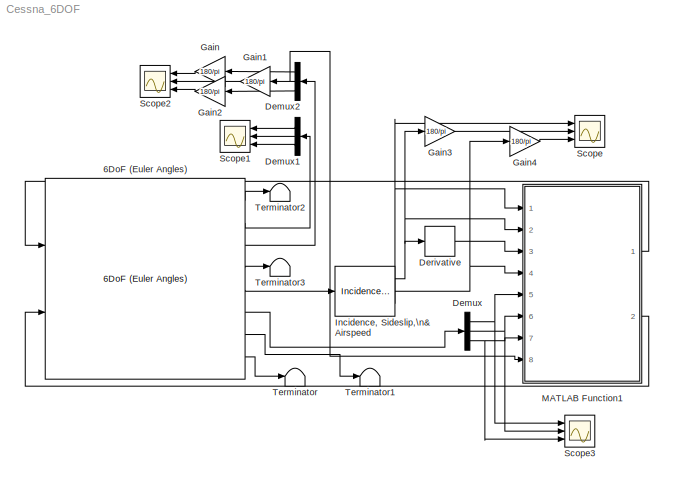
MODEL Cessna_6DOF
KIND model
BLOCK [Reference] 6DoF (Euler Angles)  REF=aerolibobsolete/6DoF (Euler Angles)
  Ports = [2, 8]
  SID = 1
  SourceBlock = aerolibobsolete/6DoF (Euler Angles)
  SourceType = 6DoF EoM (Body Axis)
  Vm_0 = [u v w]
  eul_0 = [phi theta psi]
  inertia = diag([I_xx I_yy I_zz])
  inertia_e = eye(3)
  inertia_f = 2*eye(3)
  k_quat = 1.0
  mass_0 = m
  mass_e = 0.5
  mass_f = 2.0
  mtype = Fixed
  pm_0 = [p q r]
  rep = Euler Angles
  units = Metric (MKS)
  xme_0 = [x y z]
BLOCK [Demux] Demux
  DisplayOption = bar
  Outputs = 3
  Ports = [1, 3]
  SID = 7
BLOCK [Demux] Demux1
  DisplayOption = bar
  Outputs = 3
  Ports = [1, 3]
  SID = 12
BLOCK [Demux] Demux2
  DisplayOption = bar
  Outputs = 3
  Ports = [1, 3]
  SID = 15
BLOCK [Derivative] Derivative
  SID = 6
BLOCK [Gain] Gain
  Gain = 180/pi
  OutDataTypeStr = Inherit: Inherit via internal rule
  ParamDataTypeStr = Inherit: Inherit via internal rule
  SID = 17
  SaturateOnIntegerOverflow = off
BLOCK [Gain] Gain1
  Gain = 180/pi
  OutDataTypeStr = Inherit: Inherit via internal rule
  ParamDataTypeStr = Inherit: Inherit via internal rule
  SID = 18
  SaturateOnIntegerOverflow = off
BLOCK [Gain] Gain2
  Gain = 180/pi
  OutDataTypeStr = Inherit: Inherit via internal rule
  ParamDataTypeStr = Inherit: Inherit via internal rule
  SID = 19
  SaturateOnIntegerOverflow = off
BLOCK [Gain] Gain3
  Gain = 180/pi
  OutDataTypeStr = Inherit: Inherit via internal rule
  ParamDataTypeStr = Inherit: Inherit via internal rule
  SID = 20
  SaturateOnIntegerOverflow = off
BLOCK [Gain] Gain4
  Gain = 180/pi
  OutDataTypeStr = Inherit: Inherit via internal rule
  ParamDataTypeStr = Inherit: Inherit via internal rule
  SID = 21
  SaturateOnIntegerOverflow = off
BLOCK [Reference] Incidence, Sideslip,\n& Airspeed  REF=aerolibasang/Incidence, Sideslip,\n& Airspeed
  Ports = [1, 3]
  SID = 3
  SourceBlock = aerolibasang/Incidence, Sideslip,\n& Airspeed
  SourceType = Incidence,Sideslip,&Airspeed
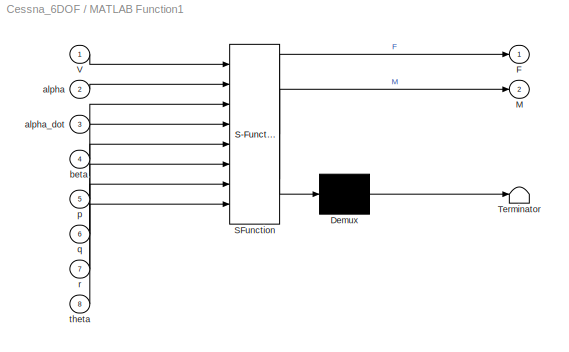
BLOCK [SubSystem] MATLAB Function1
  ErrorFcn = Stateflow.Translate.translate
  PermitHierarchicalResolution = ExplicitOnly
  Ports = [8, 2]
  RequestExecContextInheritance = off
  SFBlockType = MATLAB Function
  SID = 5
  TreatAsAtomicUnit = on
BLOCK [Demux] MATLAB Function1/ Demux 
  Outputs = 1
  Ports = [1, 1]
  SID = 5::27
BLOCK [S-Function] MATLAB Function1/ SFunction 
  EnableBusSupport = on
  FunctionName = sf_sfun
  PortCounts = [8 3]
  Ports = [8, 3]
  SID = 5::26
  Tag = Stateflow S-Function Cessna_6DOF 1
BLOCK [Terminator] MATLAB Function1/ Terminator 
  SID = 5::28
BLOCK [Outport] MATLAB Function1/F
  IconDisplay = Port number
  SID = 5::5
BLOCK [Outport] MATLAB Function1/M
  IconDisplay = Port number
  Port = 2
  SID = 5::24
BLOCK [Inport] MATLAB Function1/V
  IconDisplay = Port number
  SID = 5::1
BLOCK [Inport] MATLAB Function1/alpha
  IconDisplay = Port number
  Port = 2
  SID = 5::18
BLOCK [Inport] MATLAB Function1/alpha_dot
  IconDisplay = Port number
  Port = 3
  SID = 5::25
BLOCK [Inport] MATLAB Function1/beta
  IconDisplay = Port number
  Port = 4
  SID = 5::19
BLOCK [Inport] MATLAB Function1/p
  IconDisplay = Port number
  Port = 5
  SID = 5::20
BLOCK [Inport] MATLAB Function1/q
  IconDisplay = Port number
  Port = 6
  SID = 5::21
BLOCK [Inport] MATLAB Function1/r
  IconDisplay = Port number
  Port = 7
  SID = 5::22
BLOCK [Inport] MATLAB Function1/theta
  IconDisplay = Port number
  Port = 8
  SID = 5::23
BLOCK [Scope] Scope
  DataFormat = StructureWithTime
  Floating = off
  NumInputPorts = 3
  Ports = [3]
  SID = 13
  SampleTime = 0
  ShowLegends = off
  YMax = 5~5~5
  YMin = -5~-5~-5
BLOCK [Scope] Scope1
  DataFormat = StructureWithTime
  Floating = off
  NumInputPorts = 3
  Ports = [3]
  SID = 14
  SampleTime = 0
  SaveName = ScopeData1
  ShowLegends = off
  YMax = 5~5~5
  YMin = -5~-5~-5
BLOCK [Scope] Scope2
  DataFormat = StructureWithTime
  Floating = off
  NumInputPorts = 3
  Ports = [3]
  SID = 16
  SampleTime = 0
  SaveName = ScopeData2
  ShowLegends = off
  YMax = 5~5~5
  YMin = -5~-5~-5
BLOCK [Scope] Scope3
  DataFormat = StructureWithTime
  Floating = off
  NumInputPorts = 3
  Ports = [3]
  SID = 22
  SampleTime = 0
  SaveName = ScopeData3
  ShowLegends = off
  YMax = 5~5~5
  YMin = -5~-5~-5
BLOCK [Terminator] Terminator
  SID = 8
BLOCK [Terminator] Terminator1
  SID = 9
BLOCK [Terminator] Terminator2
  SID = 10
BLOCK [Terminator] Terminator3
  SID = 11
LINE 6DoF (Euler Angles):1 -> Terminator2:1
LINE 6DoF (Euler Angles):2 -> Demux1:1
LINE 6DoF (Euler Angles):3 -> Demux2:1
LINE 6DoF (Euler Angles):4 -> Terminator3:1
LINE 6DoF (Euler Angles):5 -> Incidence, Sideslip,\n& Airspeed:1
LINE 6DoF (Euler Angles):6 -> Demux:1
LINE 6DoF (Euler Angles):7 -> Terminator1:1
LINE 6DoF (Euler Angles):8 -> Terminator:1
LINE Demux1:1 -> Scope1:1
LINE Demux1:2 -> Scope1:2
LINE Demux1:3 -> Scope1:3
LINE Demux2:1 -> Gain:1
NET Demux2:2 -> Gain1:1, MATLAB Function1:8
LINE Demux2:3 -> Gain2:1
NET Demux:1 -> MATLAB Function1:5, Scope3:1
NET Demux:2 -> MATLAB Function1:6, Scope3:2
NET Demux:3 -> MATLAB Function1:7, Scope3:3
LINE Derivative:1 -> MATLAB Function1:3
LINE Gain1:1 -> Scope2:2
LINE Gain2:1 -> Scope2:3
LINE Gain3:1 -> Scope:2
LINE Gain4:1 -> Scope:3
LINE Gain:1 -> Scope2:1
NET Incidence, Sideslip,\n& Airspeed:1 -> Derivative:1, Gain3:1, MATLAB Function1:2
NET Incidence, Sideslip,\n& Airspeed:2 -> Gain4:1, MATLAB Function1:4
NET Incidence, Sideslip,\n& Airspeed:3 -> MATLAB Function1:1, Scope:1
LINE MATLAB Function1/ Demux :1 -> MATLAB Function1/ Terminator :1
LINE MATLAB Function1/ SFunction :1 -> MATLAB Function1/ Demux :1
LINE MATLAB Function1/ SFunction :2 -> MATLAB Function1/F:1
LINE MATLAB Function1/ SFunction :3 -> MATLAB Function1/M:1
LINE MATLAB Function1/V:1 -> MATLAB Function1/ SFunction :1
LINE MATLAB Function1/alpha:1 -> MATLAB Function1/ SFunction :2
LINE MATLAB Function1/alpha_dot:1 -> MATLAB Function1/ SFunction :3
LINE MATLAB Function1/beta:1 -> MATLAB Function1/ SFunction :4
LINE MATLAB Function1/p:1 -> MATLAB Function1/ SFunction :5
LINE MATLAB Function1/q:1 -> MATLAB Function1/ SFunction :6
LINE MATLAB Function1/r:1 -> MATLAB Function1/ SFunction :7
LINE MATLAB Function1/theta:1 -> MATLAB Function1/ SFunction :8
LINE MATLAB Function1:1 -> 6DoF (Euler Angles):1
LINE MATLAB Function1:2 -> 6DoF (Euler Angles):2
note: NET lines group one-source signal fan-out (src -> all destinations, sorted); 1:1 wires keep LINE
CHART MATLAB Function1 states=1 transitions=1
  STATE_LABEL 'eML_blk_kernel()'
